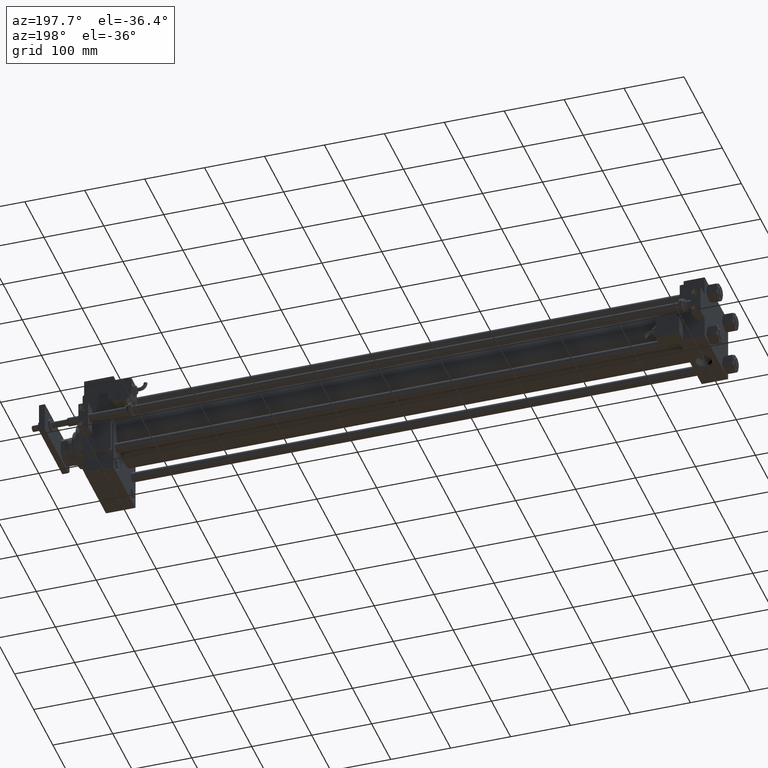
[diagram: clean part render]
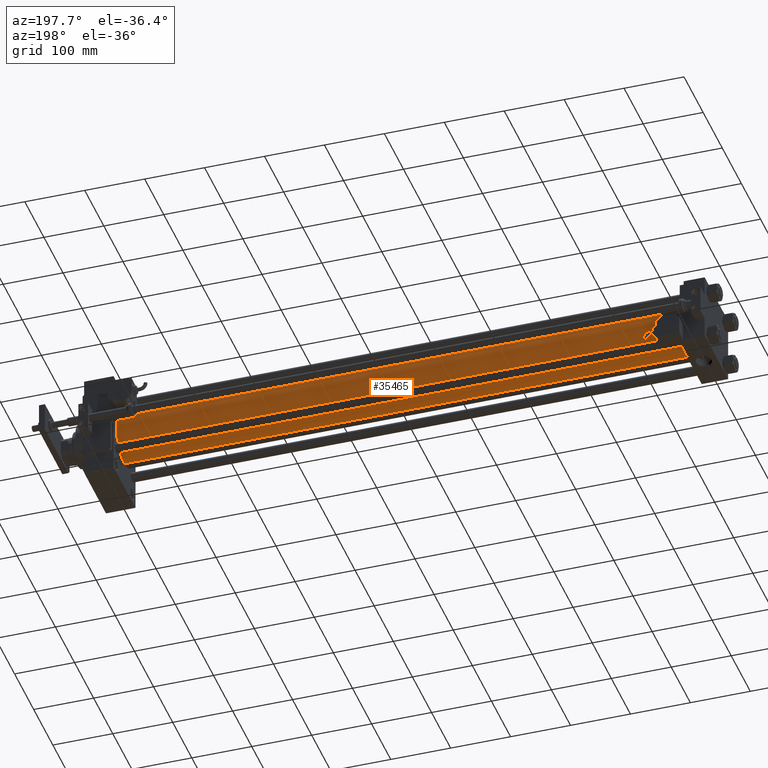
[diagram: same view with one face highlighted and labeled with its STEP entity id]
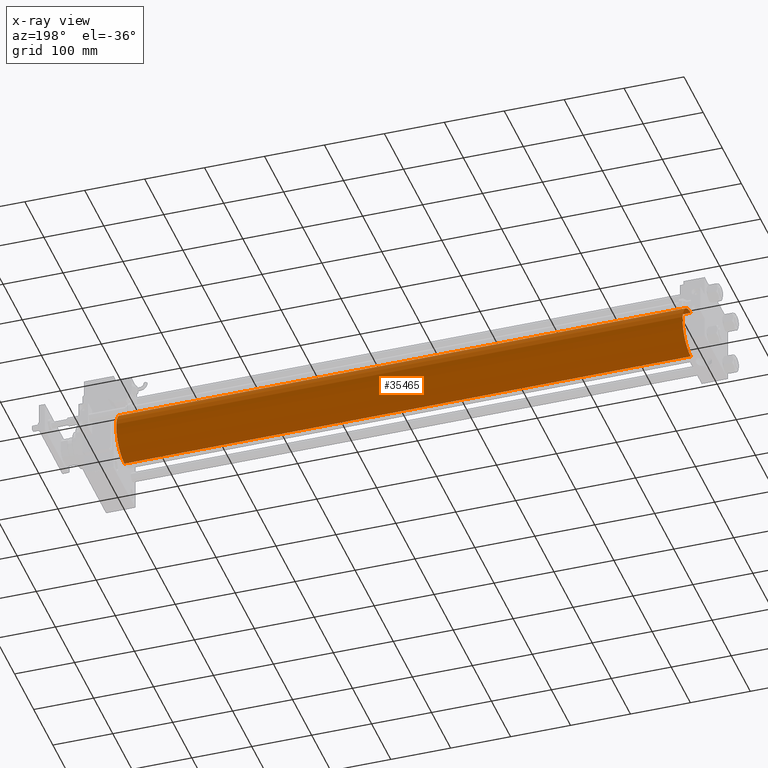
[diagram: x-ray of the same camera — body ghosted, the highlighted face saturated]
A machine part, auxiliary view. The second image highlights one B-rep face of the part: STEP entity #35465.
The next image is the same camera in x-ray: the body ghosted, the highlighted face saturated — about 0% of this face is hidden behind the body in this view.
In plain terms, the highlighted cylindrical surface (edge-blend (fillet) strip) has radius 43 mm, axis along (-1, -0, -0).
Its self-contained STEP definition (entity closure, byte-faithful):
#3719 = DIRECTION ( 'NONE',  ( 0.000000000000000000, 0.000000000000000000, -1.000000000000000000 ) ) ;
#4819 = VERTEX_POINT ( 'NONE', #34577 ) ;
#5879 = AXIS2_PLACEMENT_3D ( 'NONE', #18498, #31665, #35876 ) ;
#5907 = ORIENTED_EDGE ( 'NONE', *, *, #12010, .F. ) ;
#6464 = EDGE_CURVE ( 'NONE', #4819, #22730, #20115, .T. ) ;
#8241 = CIRCLE ( 'NONE', #15430, 43.00000000000000000 ) ;
#11064 = VERTEX_POINT ( 'NONE', #51135 ) ;
#12010 = EDGE_CURVE ( 'NONE', #13833, #4819, #16021, .T. ) ;
#13833 = VERTEX_POINT ( 'NONE', #31928 ) ;
#14532 = CARTESIAN_POINT ( 'NONE',  ( 989.0000000000000000, 2.663896022368408223E-15, -43.00000000000000000 ) ) ;
#15286 = DIRECTION ( 'NONE',  ( 1.000000000000000000, -0.000000000000000000, 0.000000000000000000 ) ) ;
#15430 = AXIS2_PLACEMENT_3D ( 'NONE', #19763, #15286, #27897 ) ;
#16021 = CIRCLE ( 'NONE', #50966, 43.00000000000000000 ) ;
#16343 = DIRECTION ( 'NONE',  ( 1.000000000000000000, 0.000000000000000000, 0.000000000000000000 ) ) ;
#18498 = CARTESIAN_POINT ( 'NONE',  ( 989.0000000000000000, -2.602085213965210642E-15, 0.000000000000000000 ) ) ;
#18867 = EDGE_CURVE ( 'NONE', #11064, #22730, #8241, .T. ) ;
#19763 = CARTESIAN_POINT ( 'NONE',  ( 44.00000000000004263, -2.602085213965210642E-15, 0.000000000000000000 ) ) ;
#19838 = DIRECTION ( 'NONE',  ( -1.000000000000000000, -0.000000000000000000, -0.000000000000000000 ) ) ;
#20115 = LINE ( 'NONE', #32464, #52645 ) ;
#20606 = EDGE_LOOP ( 'NONE', ( #5907, #27632, #40311, #32167 ) ) ;
#22730 = VERTEX_POINT ( 'NONE', #24453 ) ;
#22983 = FACE_OUTER_BOUND ( 'NONE', #20606, .T. ) ;
#24453 = CARTESIAN_POINT ( 'NONE',  ( 44.00000000000004263, -2.602085213965210642E-15, 43.00000000000000000 ) ) ;
#27632 = ORIENTED_EDGE ( 'NONE', *, *, #53053, .T. ) ;
#27897 = DIRECTION ( 'NONE',  ( 0.000000000000000000, 0.000000000000000000, 1.000000000000000000 ) ) ;
#31637 = DIRECTION ( 'NONE',  ( -1.000000000000000000, -0.000000000000000000, -0.000000000000000000 ) ) ;
#31665 = DIRECTION ( 'NONE',  ( -1.000000000000000000, -0.000000000000000000, -0.000000000000000000 ) ) ;
#31928 = CARTESIAN_POINT ( 'NONE',  ( 989.0000000000000000, 2.663896022368408223E-15, -43.00000000000000000 ) ) ;
#32167 = ORIENTED_EDGE ( 'NONE', *, *, #6464, .F. ) ;
#32464 = CARTESIAN_POINT ( 'NONE',  ( 989.0000000000000000, -2.602085213965210642E-15, 43.00000000000000000 ) ) ;
#34577 = CARTESIAN_POINT ( 'NONE',  ( 989.0000000000000000, -2.602085213965210642E-15, 43.00000000000000000 ) ) ;
#35465 = ADVANCED_FACE ( 'NONE', ( #22983 ), #51898, .T. ) ;
#35876 = DIRECTION ( 'NONE',  ( 0.000000000000000000, 0.000000000000000000, 1.000000000000000000 ) ) ;
#37673 = CARTESIAN_POINT ( 'NONE',  ( 989.0000000000000000, -2.602085213965210642E-15, 0.000000000000000000 ) ) ;
#40311 = ORIENTED_EDGE ( 'NONE', *, *, #18867, .T. ) ;
#46958 = VECTOR ( 'NONE', #31637, 1000.000000000000000 ) ;
#50966 = AXIS2_PLACEMENT_3D ( 'NONE', #37673, #16343, #3719 ) ;
#51135 = CARTESIAN_POINT ( 'NONE',  ( 44.00000000000004263, 2.663896022368408223E-15, -43.00000000000000000 ) ) ;
#51898 = CYLINDRICAL_SURFACE ( 'NONE', #5879, 43.00000000000000000 ) ;
#52645 = VECTOR ( 'NONE', #19838, 1000.000000000000000 ) ;
#52970 = LINE ( 'NONE', #14532, #46958 ) ;
#53053 = EDGE_CURVE ( 'NONE', #13833, #11064, #52970, .T. ) ;